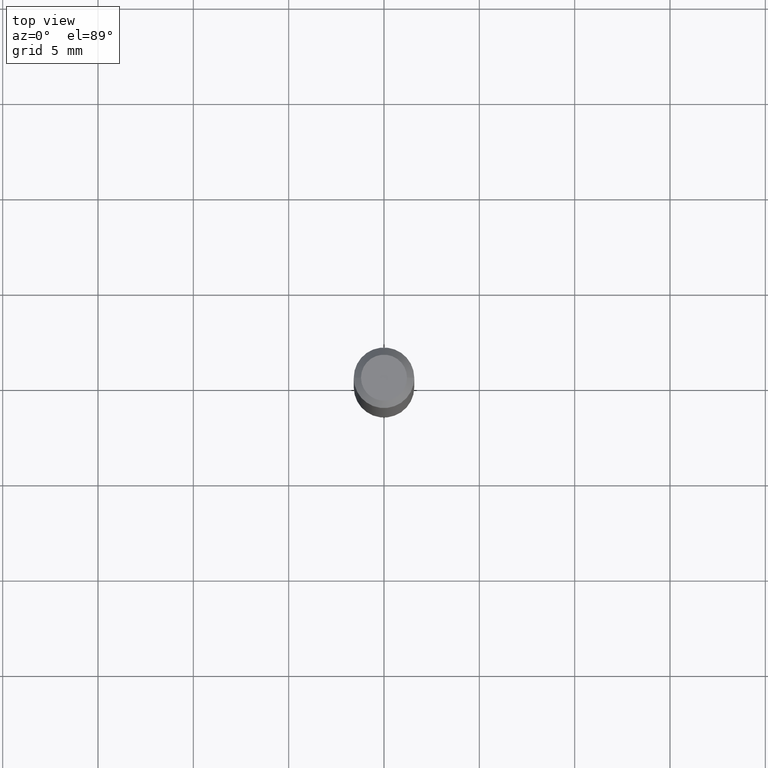
[diagram: clean part render]
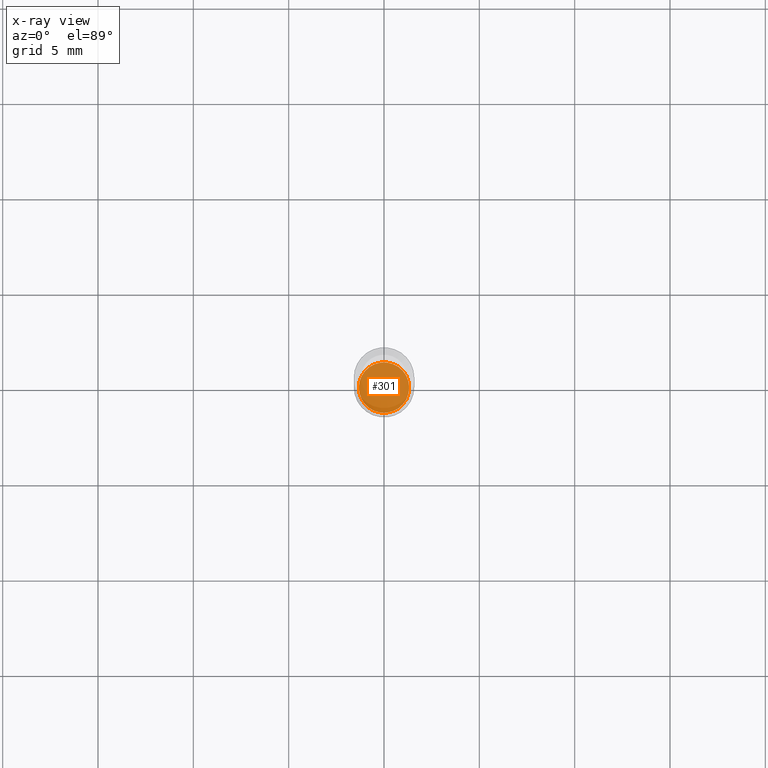
[diagram: x-ray — body ghosted, one internal face saturated and labeled with its STEP entity id]
A machine part, top view, then the same camera in x-ray: the body is ghosted and one INTERNAL B-rep face — a face not visible from any outside direction — is saturated and labeled: STEP entity #301.
In plain terms, the highlighted planar face has unit normal (-0, 0, 1).
Its self-contained STEP definition (entity closure, byte-faithful):
#7 = CIRCLE ( 'NONE', #96, 0.05199999999999999067 ) ;
#32 = CARTESIAN_POINT ( 'NONE',  ( -0.05199999999999999067, -3.765273936759765493E-15, -1.185000000000000275 ) ) ;
#52 = CARTESIAN_POINT ( 'NONE',  ( 0.05199999999999999067, -4.500519445768813694E-15, -1.185000000000000275 ) ) ;
#77 = ORIENTED_EDGE ( 'NONE', *, *, #258, .F. ) ;
#96 = AXIS2_PLACEMENT_3D ( 'NONE', #290, #111, #260 ) ;
#104 = AXIS2_PLACEMENT_3D ( 'NONE', #132, #253, #172 ) ;
#111 = DIRECTION ( 'NONE',  ( -2.445468806185136597E-29, 3.491481338843145583E-15, 1.000000000000000000 ) ) ;
#132 = CARTESIAN_POINT ( 'NONE',  ( 2.897880535329387383E-29, -4.137405386529128330E-15, -1.185000000000000275 ) ) ;
#167 = DIRECTION ( 'NONE',  ( -2.438088387897960049E-29, 3.491481338843145188E-15, 1.000000000000000000 ) ) ;
#172 = DIRECTION ( 'NONE',  ( 1.000000000000000000, -6.982962677686258822E-15, 0.000000000000000000 ) ) ;
#249 = AXIS2_PLACEMENT_3D ( 'NONE', #465, #167, #353 ) ;
#253 = DIRECTION ( 'NONE',  ( -2.445468806185136597E-29, 3.491481338843145583E-15, 1.000000000000000000 ) ) ;
#258 = EDGE_CURVE ( 'NONE', #293, #416, #7, .T. ) ;
#260 = DIRECTION ( 'NONE',  ( 1.000000000000000000, -6.982962677686258822E-15, 0.000000000000000000 ) ) ;
#268 = ORIENTED_EDGE ( 'NONE', *, *, #464, .F. ) ;
#290 = CARTESIAN_POINT ( 'NONE',  ( 2.897880535329387383E-29, -4.137405386529128330E-15, -1.185000000000000275 ) ) ;
#293 = VERTEX_POINT ( 'NONE', #52 ) ;
#301 = ADVANCED_FACE ( 'NONE', ( #345 ), #431, .F. ) ;
#345 = FACE_OUTER_BOUND ( 'NONE', #448, .T. ) ;
#353 = DIRECTION ( 'NONE',  ( 1.000000000000000000, -6.982962677686265922E-15, 4.876176775795935793E-29 ) ) ;
#416 = VERTEX_POINT ( 'NONE', #32 ) ;
#427 = CIRCLE ( 'NONE', #104, 0.05199999999999999067 ) ;
#431 = PLANE ( 'NONE',  #249 ) ;
#448 = EDGE_LOOP ( 'NONE', ( #77, #268 ) ) ;
#464 = EDGE_CURVE ( 'NONE', #416, #293, #427, .T. ) ;
#465 = CARTESIAN_POINT ( 'NONE',  ( 2.897880535329387383E-29, -4.137405386529128330E-15, -1.185000000000000275 ) ) ;